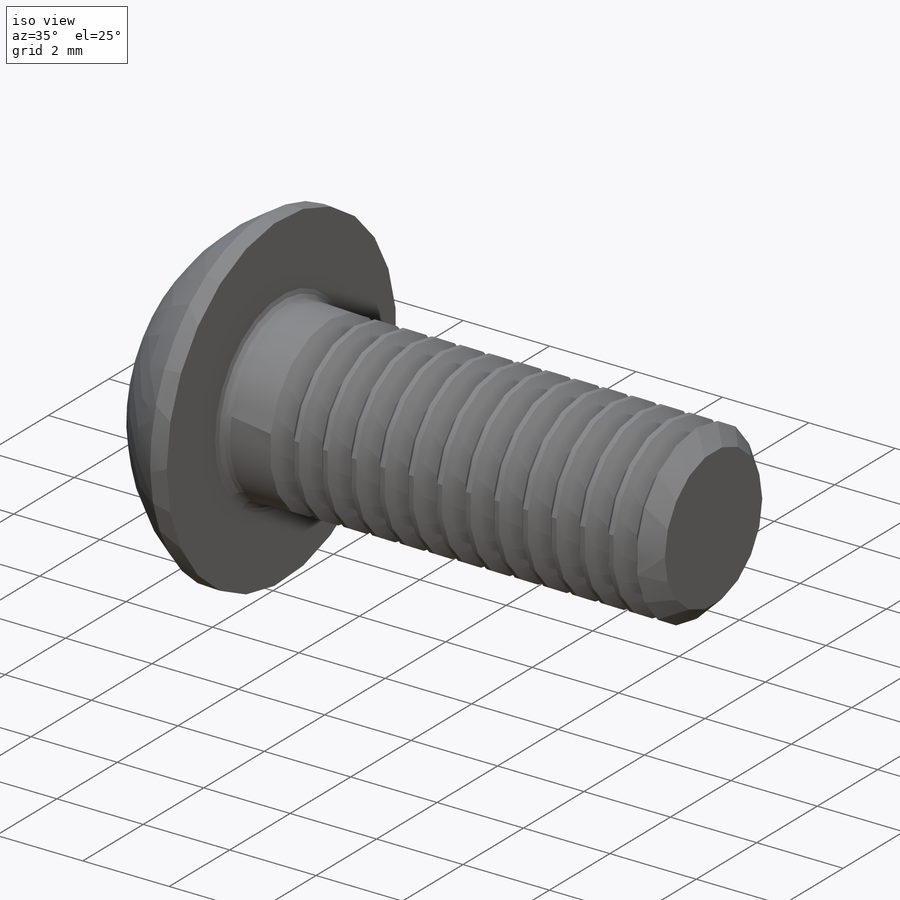
[diagram: iso view]
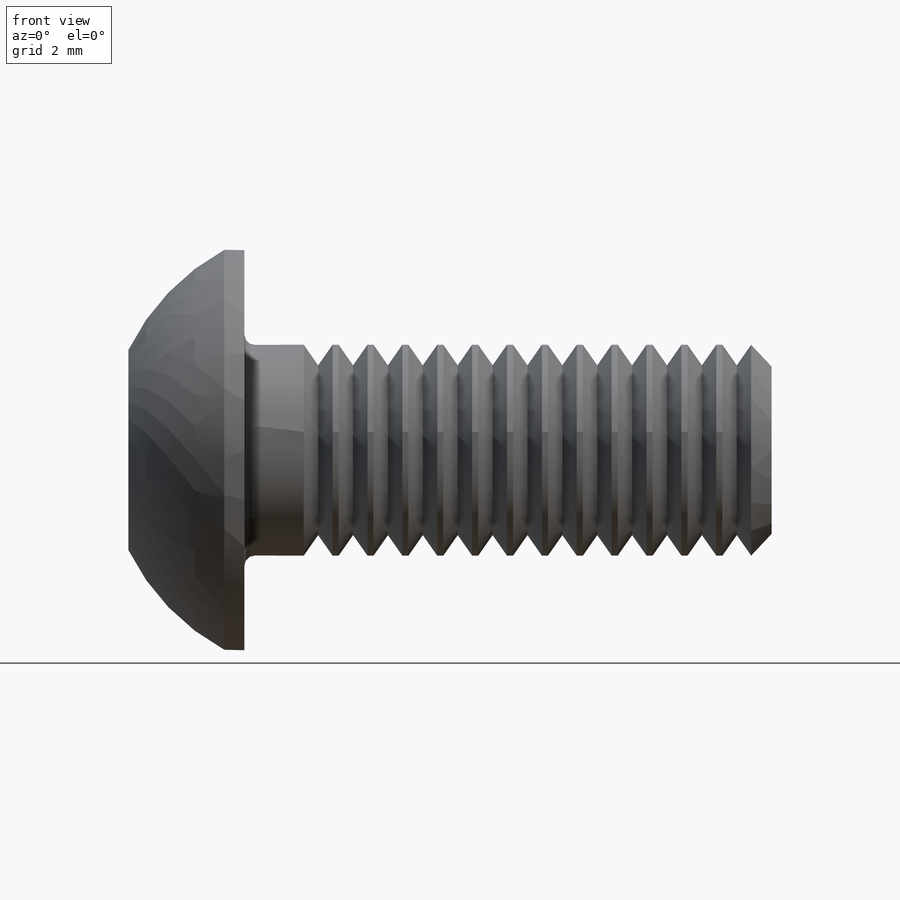
[diagram: front view]
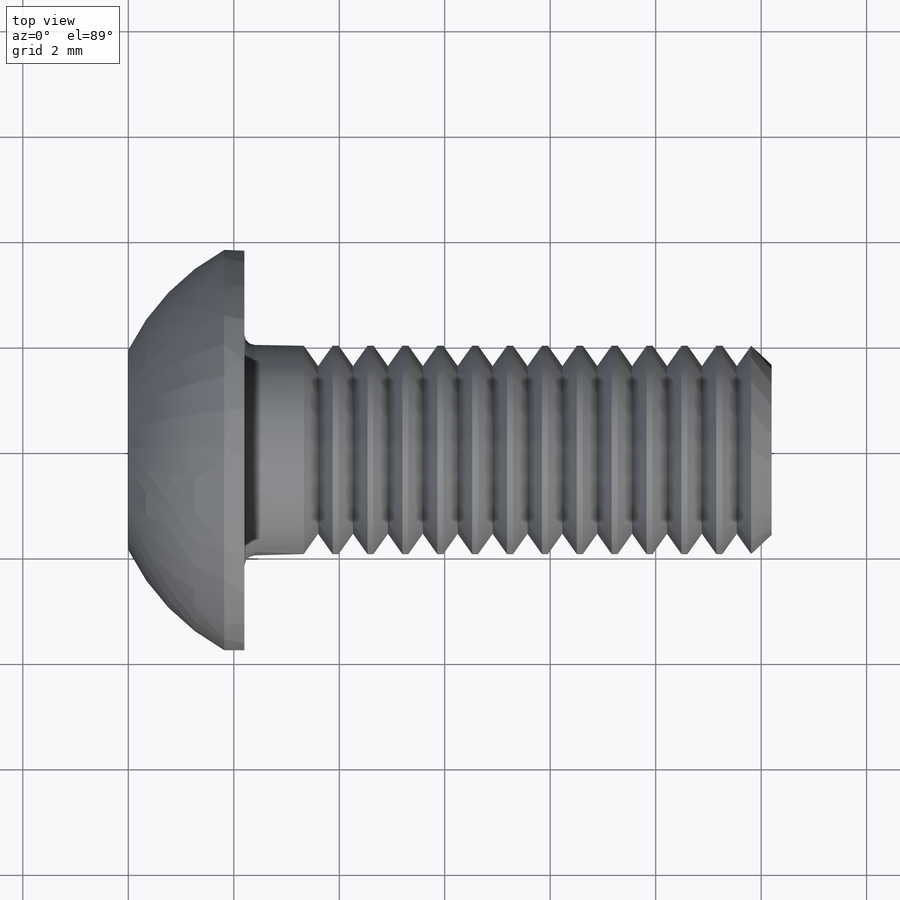
[diagram: top view]
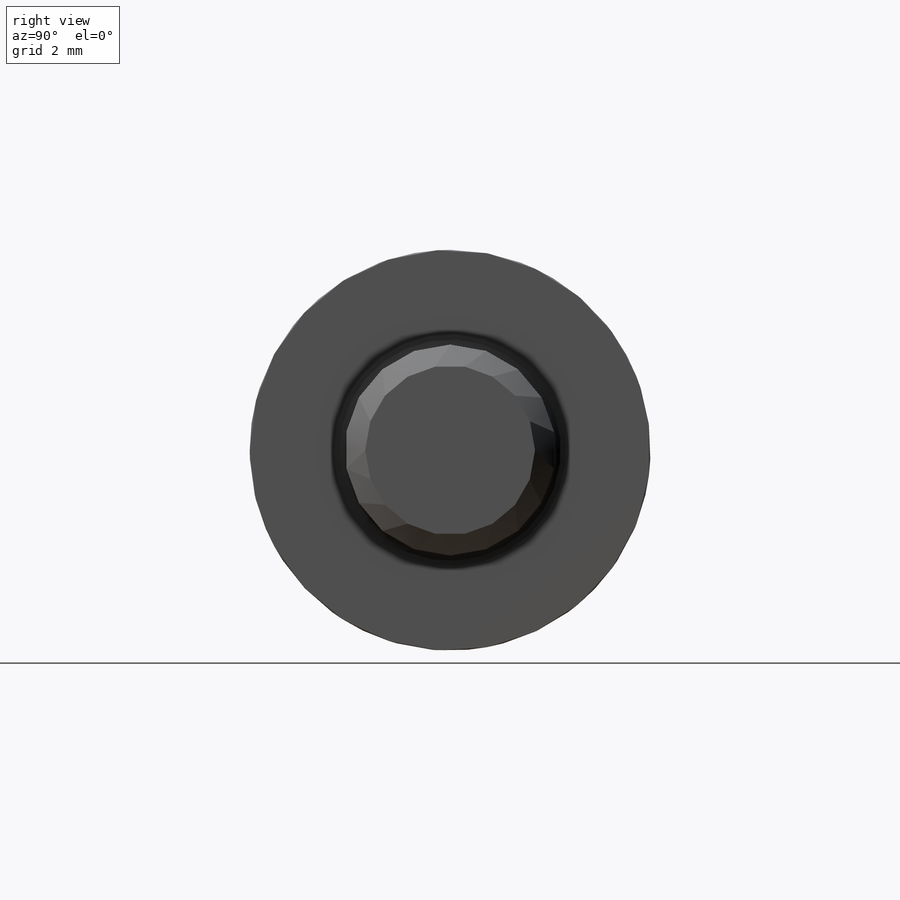
[diagram: right view]
SOLIDWORKS PART (.sldprt)
format: sldprt  version: not decoded by parser v0  size: 468,480 bytes
history: native  units: mm
features: sketch x4, plane x3, cut_revolve x2, material x1, revolve x1, thread x1, fillet x1, cut_extrude x1, pattern_linear x1 (+12 scaffold rows collapsed; 1 parser-record rows omitted)
feature tree (28):
  parser-record x1  (decoder bookkeeping rows leaked as tree rows — omitted from the tree; the rows remain in map.json)
  scaffold x12  (default folders/planes/origin — collapsed)
  material  "AISI 1045 Aço, trefilado"
  plane  "Plane1"
  plane  "Plane2"
  plane  "Plane3"
  sketch  "BodySke"  dims[c1.D2=~9.38469mm c1.Diameter=4.0mm c1.Length=10.0mm c1.Head_dia=7.6mm c1.D1=3.8mm c1.Head_ht=2.2mm c1.Head_side_ht=0.38mm c1.Minor_dia=3.22mm c2.D2=~3.81635mm c2.Body_ch_ang=45.0deg c2.Advance=0.7mm c2.Thread_nom=10.0mm c2.Thread_lim=36.5125mm]
  revolve  "BaseBody"  [1 undecoded]
  thread  "ThreadCosmetic"  Diameter=8.6mm Thread_length=8.6mm Thread_minor=3.22mm  [1 undecoded]
  fillet  "Fillet1"  Radius=0.2mm
  sketch  "Sketch2"  dims[c1.D1=7.9375mm c1.D2=25.4mm c2.D2=60.0deg c2.Wall_thickness=12.827mm c2.PreBroach_depth=1.3mm c2.PreBroach_dia=2.5mm]
  cut_revolve  "PreBroach"  Angle=360deg
  sketch  "Sketch3"  dims[c1.D1=9.525mm c1.D2=9.525mm c1.Hex_size=19.05mm c1.D4=~14.664697mm c2.D4=120.0deg c2.Hex_size=15.875mm c2.D1=7.9375mm c2.D2=7.9375mm c2.D3=~13.528644mm c3.D3=120.0deg c3.D4=15.875mm c3.Hex_size=2.5mm c3.D1=7.9375mm c3.D2=7.9375mm c4.D3=2.5mm c4.D1=1.25mm c4.D2=1.25mm]
  cut_extrude  "Hex"  Depth=1.3mm Key_eng=1.3mm
  sketch  "ThdSchSke"  dims[c1.Thread_minor=~1.03886mm c1.Diameter=~1.413535mm c1.Start=~0.988134mm c1.D4=~4.446753mm c1.Vee=60.0deg c2.Thread_minor=~1.03886mm c2.Start=~2.540025mm c2.D1=~0.108159mm c2.D2=~0.108159mm c3.D1=~0.216319mm c3.SideAngle=55.0deg c3.D2=~0.216319mm c3.VeeAngle=70.0deg c3.Thread_minor=3.22mm c3.Overcut=5.0mm c3.Diameter=4.0mm c3.D6=~8.326268mm c4.D1=~8.326268mm c5.D1=90.0deg c5.Start=63.5mm c6.Start=140.4874mm c7.Start=8.3947mm c8.Start=8.3947mm c9.Start=3.6mm]
  cut_revolve  "ThreadSchematic"  Angle=360deg
  pattern_linear  "ThdSchPat"  Count1=13 Count2=1 Spacing1=0.661538mm Spacing2=50mm Num_threads=13 Advance=0.661538mm ConfigurationName=0mm CopiedFlag=0 PartNumberID=0mm
decode coverage: 10 of 11 modeling features carry decoded parameters
note: ~ marks probable driven/reference dimensions
note: 2 parameter values undecoded
note: suppression state not decoded; provenance and decode notes live in map.json
